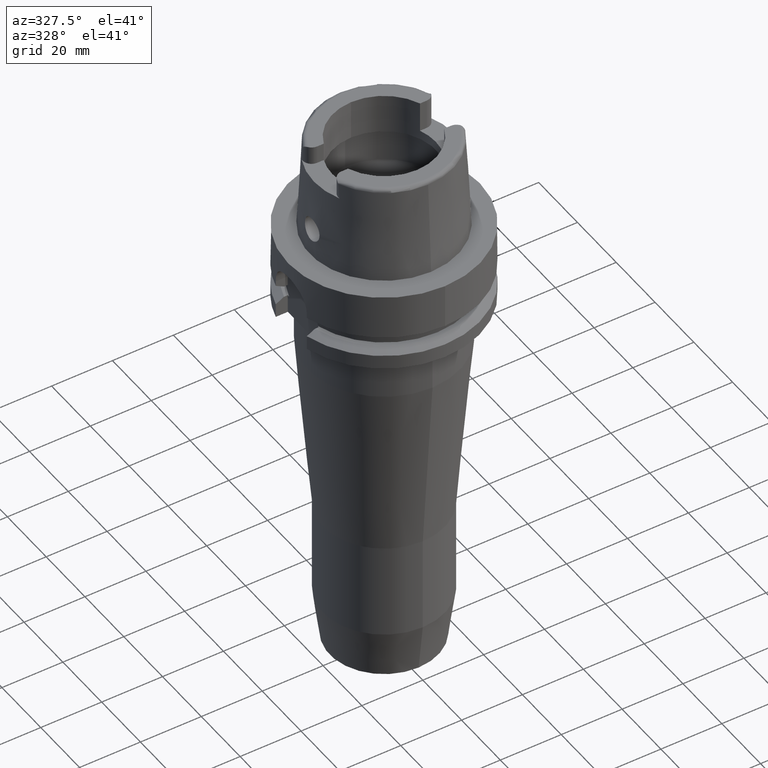
[diagram: clean part render]
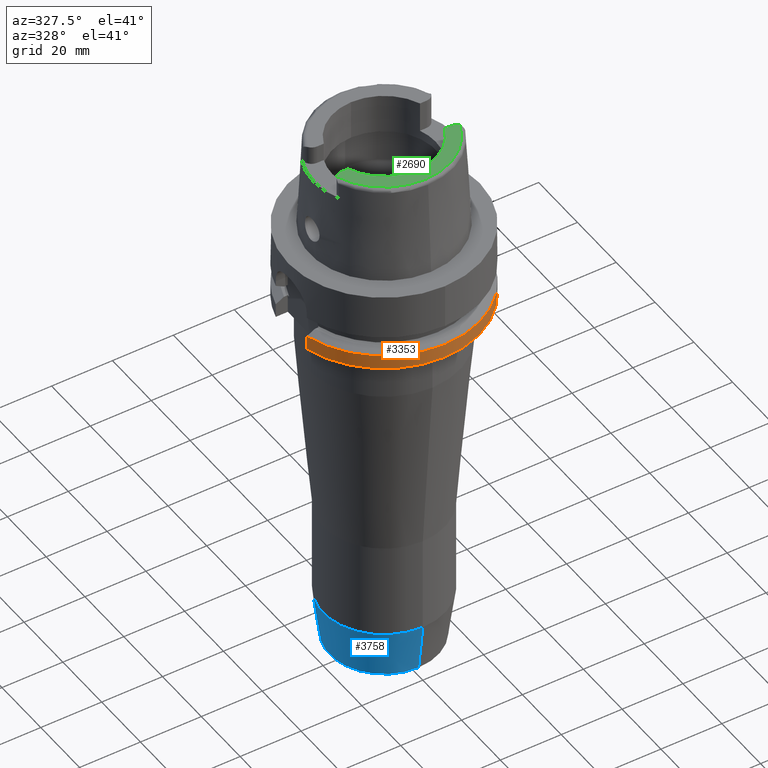
[diagram: same view with three faces highlighted in distinct colors, each labeled with its STEP entity id]
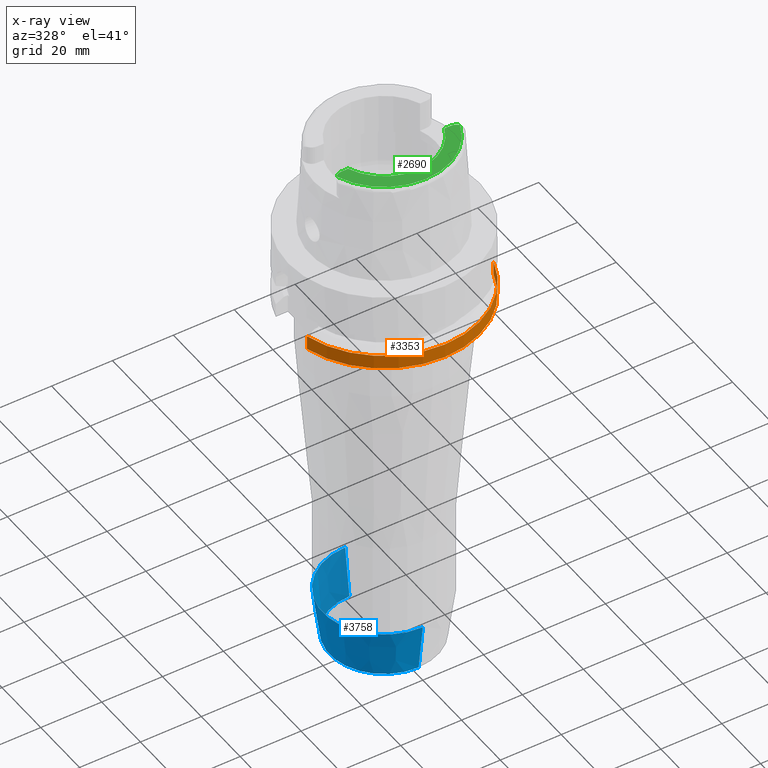
[diagram: x-ray of the same camera — body ghosted, the three highlighted faces saturated]
A machine part, auxiliary view with three faces highlighted in distinct colors.
The next image is the same camera in x-ray (body ghosted, the three faces saturated) — at least one of them is partly hidden behind the body in this view.
Their STEP definitions:

[orange] entity #3353 — the highlighted cylindrical surface (partial cylindrical patch) has radius 31.5 mm, axis along (0, 0, 1).
#988=CARTESIAN_POINT('',(0.E0,0.E0,-2.6E1));
#989=DIRECTION('',(0.E0,0.E0,1.E0));
#990=DIRECTION('',(-9.672125547036E-1,-2.539682539683E-1,0.E0));
#991=AXIS2_PLACEMENT_3D('',#988,#989,#990);
#996=CARTESIAN_POINT('',(0.E0,0.E0,-2.6E1));
#997=DIRECTION('',(0.E0,0.E0,1.E0));
#998=DIRECTION('',(0.E0,-1.E0,0.E0));
#999=AXIS2_PLACEMENT_3D('',#996,#997,#998);
#1170=DIRECTION('',(2.692748886334E-8,-1.025509352925E-7,1.E0));
#1171=VECTOR('',#1170,4.622496621782E0);
#1172=CARTESIAN_POINT('',(-3.046719547316E1,-8.E0,-2.6E1));
#1173=LINE('',#1172,#1171);
#1177=DIRECTION('',(-9.382967346775E-9,-3.147114050931E-8,-1.E0));
#1178=VECTOR('',#1177,4.622502098587E0);
#1179=CARTESIAN_POINT('',(3.018691773962E1,-8.999999854524E0,
-2.137749790141E1));
#1180=LINE('',#1179,#1178);
#1268=CARTESIAN_POINT('',(0.E0,0.E0,-2.137749907476E1));
#1269=DIRECTION('',(0.E0,0.E0,-1.E0));
#1270=DIRECTION('',(9.583148474999E-1,-2.857142857143E-1,0.E0));
#1271=AXIS2_PLACEMENT_3D('',#1268,#1269,#1270);
#1276=CARTESIAN_POINT('',(0.E0,0.E0,-2.137749907476E1));
#1277=DIRECTION('',(0.E0,0.E0,-1.E0));
#1278=DIRECTION('',(0.E0,-1.E0,0.E0));
#1279=AXIS2_PLACEMENT_3D('',#1276,#1277,#1278);
#2462=CARTESIAN_POINT('',(-3.046719547316E1,-8.E0,-2.6E1));
#2463=VERTEX_POINT('',#2462);
#2464=CARTESIAN_POINT('',(-1.294568961206E-14,-3.15E1,-2.6E1));
#2465=CARTESIAN_POINT('',(3.018691769625E1,-9.E0,-2.6E1));
#2466=VERTEX_POINT('',#2464);
#2467=VERTEX_POINT('',#2465);
#2490=CARTESIAN_POINT('',(-3.046719534869E1,-8.000000474042E0,
-2.137750337822E1));
#2491=VERTEX_POINT('',#2490);
#2492=CARTESIAN_POINT('',(3.018691769625E1,-9.E0,-2.137749907476E1));
#2493=CARTESIAN_POINT('',(0.E0,-3.15E1,-2.137749907476E1));
#2494=VERTEX_POINT('',#2492);
#2495=VERTEX_POINT('',#2493);
#3337=CARTESIAN_POINT('',(0.E0,0.E0,-1.591E2));
#3338=DIRECTION('',(0.E0,0.E0,1.E0));
#3339=DIRECTION('',(0.E0,1.E0,0.E0));
#3340=AXIS2_PLACEMENT_3D('',#3337,#3338,#3339);
#3341=CYLINDRICAL_SURFACE('',#3340,3.15E1);
#3343=ORIENTED_EDGE('',*,*,#3342,.T.);
#3345=ORIENTED_EDGE('',*,*,#3344,.F.);
#3347=ORIENTED_EDGE('',*,*,#3346,.F.);
#3348=ORIENTED_EDGE('',*,*,#3327,.T.);
#3349=ORIENTED_EDGE('',*,*,#3218,.F.);
#3350=ORIENTED_EDGE('',*,*,#3216,.F.);
#3351=EDGE_LOOP('',(#3343,#3345,#3347,#3348,#3349,#3350));
#3352=FACE_OUTER_BOUND('',#3351,.F.);
#992=CIRCLE('',#991,3.15E1);
#1000=CIRCLE('',#999,3.15E1);
#1272=CIRCLE('',#1271,3.15E1);
#1280=CIRCLE('',#1279,3.15E1);
#3216=EDGE_CURVE('',#2463,#2466,#992,.T.);
#3218=EDGE_CURVE('',#2466,#2467,#1000,.T.);
#3327=EDGE_CURVE('',#2494,#2467,#1180,.T.);
#3342=EDGE_CURVE('',#2463,#2491,#1173,.T.);
#3344=EDGE_CURVE('',#2495,#2491,#1280,.T.);
#3346=EDGE_CURVE('',#2494,#2495,#1272,.T.);
#3353=ADVANCED_FACE('',(#3352),#3341,.T.);

[blue] entity #3758 — the highlighted conical surface has half-angle 7.5 deg.
#1683=DIRECTION('',(0.E0,-1.305261922200E-1,-9.914448613738E-1));
#1684=VECTOR('',#1683,1.649477368014E1);
#1685=CARTESIAN_POINT('',(0.E0,2.E1,-1.336463413953E2));
#1686=LINE('',#1685,#1684);
#1698=CARTESIAN_POINT('',(0.E0,0.E0,-1.336463413953E2));
#1699=DIRECTION('',(0.E0,0.E0,1.E0));
#1700=DIRECTION('',(0.E0,1.E0,0.E0));
#1701=AXIS2_PLACEMENT_3D('',#1698,#1699,#1700);
#1706=DIRECTION('',(0.E0,1.305261922200E-1,-9.914448613738E-1));
#1707=VECTOR('',#1706,1.649477368014E1);
#1708=CARTESIAN_POINT('',(0.E0,-2.E1,-1.336463413953E2));
#1709=LINE('',#1708,#1707);
#1721=CARTESIAN_POINT('',(0.E0,0.E0,-1.5E2));
#1722=DIRECTION('',(0.E0,0.E0,1.E0));
#1723=DIRECTION('',(0.E0,1.E0,0.E0));
#1724=AXIS2_PLACEMENT_3D('',#1721,#1722,#1723);
#2430=CARTESIAN_POINT('',(0.E0,-1.784700000001E1,-1.5E2));
#2431=CARTESIAN_POINT('',(0.E0,1.784700000001E1,-1.5E2));
#2432=VERTEX_POINT('',#2430);
#2433=VERTEX_POINT('',#2431);
#2434=CARTESIAN_POINT('',(0.E0,2.E1,-1.336463413953E2));
#2435=VERTEX_POINT('',#2434);
#2436=CARTESIAN_POINT('',(0.E0,-2.E1,-1.336463413953E2));
#2437=VERTEX_POINT('',#2436);
#3746=CARTESIAN_POINT('',(0.E0,0.E0,-1.418231706977E2));
#3747=DIRECTION('',(0.E0,0.E0,1.E0));
#3748=DIRECTION('',(0.E0,1.E0,0.E0));
#3749=AXIS2_PLACEMENT_3D('',#3746,#3747,#3748);
#3750=CONICAL_SURFACE('',#3749,1.892350000001E1,7.5E0);
#3751=ORIENTED_EDGE('',*,*,#3736,.F.);
#3752=ORIENTED_EDGE('',*,*,#3713,.T.);
#3753=ORIENTED_EDGE('',*,*,#3740,.T.);
#3755=ORIENTED_EDGE('',*,*,#3754,.F.);
#3756=EDGE_LOOP('',(#3751,#3752,#3753,#3755));
#3757=FACE_OUTER_BOUND('',#3756,.F.);
#1702=CIRCLE('',#1701,2.000000000001E1);
#1725=CIRCLE('',#1724,1.784700000001E1);
#3713=EDGE_CURVE('',#2435,#2437,#1702,.T.);
#3736=EDGE_CURVE('',#2435,#2433,#1686,.T.);
#3740=EDGE_CURVE('',#2437,#2432,#1709,.T.);
#3754=EDGE_CURVE('',#2433,#2432,#1725,.T.);
#3758=ADVANCED_FACE('',(#3757),#3750,.T.);

[green] entity #2690 — the highlighted planar face has unit normal (0, 0, 1).
#99=DIRECTION('',(-1.E0,8.644330667353E-14,0.E0));
#100=VECTOR('',#99,2.188509563969E0);
#101=CARTESIAN_POINT('',(-1.580149043603E1,-6.27E0,3.2E1));
#102=LINE('',#101,#100);
#106=CARTESIAN_POINT('',(-1.799E1,-9.15E0,3.2E1));
#107=DIRECTION('',(0.E0,0.E0,-1.E0));
#108=DIRECTION('',(-7.912216523764E-1,6.115294733787E-1,0.E0));
#109=AXIS2_PLACEMENT_3D('',#106,#107,#108);
#114=CARTESIAN_POINT('',(0.E0,0.E0,3.2E1));
#115=DIRECTION('',(0.E0,0.E0,1.E0));
#116=DIRECTION('',(-9.294994374136E-1,-3.688235294118E-1,0.E0));
#117=AXIS2_PLACEMENT_3D('',#114,#115,#116);
#122=CARTESIAN_POINT('',(0.E0,0.E0,3.2E1));
#123=DIRECTION('',(0.E0,0.E0,1.E0));
#124=DIRECTION('',(0.E0,-1.E0,0.E0));
#125=AXIS2_PLACEMENT_3D('',#122,#123,#124);
#130=CARTESIAN_POINT('',(1.799E1,-9.15E0,3.2E1));
#131=DIRECTION('',(0.E0,0.E0,-1.E0));
#132=DIRECTION('',(0.E0,1.E0,0.E0));
#133=AXIS2_PLACEMENT_3D('',#130,#131,#132);
#138=CARTESIAN_POINT('',(0.E0,0.E0,3.2E1));
#139=DIRECTION('',(0.E0,0.E0,-1.E0));
#140=DIRECTION('',(9.395199128801E-1,-3.424942821446E-1,0.E0));
#141=AXIS2_PLACEMENT_3D('',#138,#139,#140);
#309=DIRECTION('',(-1.E0,-8.806665515566E-14,0.E0));
#310=VECTOR('',#309,2.188509563969E0);
#311=CARTESIAN_POINT('',(1.799E1,-6.27E0,3.2E1));
#312=LINE('',#311,#310);
#2287=CARTESIAN_POINT('',(0.E0,-1.7E1,3.2E1));
#2288=VERTEX_POINT('',#2287);
#2289=CARTESIAN_POINT('',(-1.580149043603E1,-6.27E0,3.2E1));
#2290=VERTEX_POINT('',#2289);
#2303=CARTESIAN_POINT('',(-1.799E1,-6.27E0,3.2E1));
#2304=VERTEX_POINT('',#2303);
#2315=CARTESIAN_POINT('',(-2.026871835884E1,-7.388795116669E0,3.2E1));
#2316=VERTEX_POINT('',#2315);
#2317=CARTESIAN_POINT('',(1.580149043603E1,-6.27E0,3.2E1));
#2318=VERTEX_POINT('',#2317);
#2319=CARTESIAN_POINT('',(1.799E1,-6.27E0,3.2E1));
#2320=VERTEX_POINT('',#2319);
#2321=CARTESIAN_POINT('',(2.026871835884E1,-7.388795116670E0,3.2E1));
#2322=VERTEX_POINT('',#2321);
#2671=CARTESIAN_POINT('',(0.E0,0.E0,3.2E1));
#2672=DIRECTION('',(0.E0,0.E0,1.E0));
#2673=DIRECTION('',(0.E0,1.E0,0.E0));
#2674=AXIS2_PLACEMENT_3D('',#2671,#2672,#2673);
#2675=PLANE('',#2674);
#2677=ORIENTED_EDGE('',*,*,#2676,.T.);
#2678=ORIENTED_EDGE('',*,*,#2663,.F.);
#2679=ORIENTED_EDGE('',*,*,#2627,.T.);
#2681=ORIENTED_EDGE('',*,*,#2680,.T.);
#2683=ORIENTED_EDGE('',*,*,#2682,.F.);
#2685=ORIENTED_EDGE('',*,*,#2684,.T.);
#2687=ORIENTED_EDGE('',*,*,#2686,.T.);
#2688=EDGE_LOOP('',(#2677,#2678,#2679,#2681,#2683,#2685,#2687));
#2689=FACE_OUTER_BOUND('',#2688,.F.);
#110=CIRCLE('',#109,2.88E0);
#118=CIRCLE('',#117,1.7E1);
#126=CIRCLE('',#125,1.7E1);
#134=CIRCLE('',#133,2.88E0);
#142=CIRCLE('',#141,2.157348458609E1);
#2627=EDGE_CURVE('',#2290,#2288,#118,.T.);
#2663=EDGE_CURVE('',#2290,#2304,#102,.T.);
#2676=EDGE_CURVE('',#2316,#2304,#110,.T.);
#2680=EDGE_CURVE('',#2288,#2318,#126,.T.);
#2682=EDGE_CURVE('',#2320,#2318,#312,.T.);
#2684=EDGE_CURVE('',#2320,#2322,#134,.T.);
#2686=EDGE_CURVE('',#2322,#2316,#142,.T.);
#2690=ADVANCED_FACE('',(#2689),#2675,.T.);